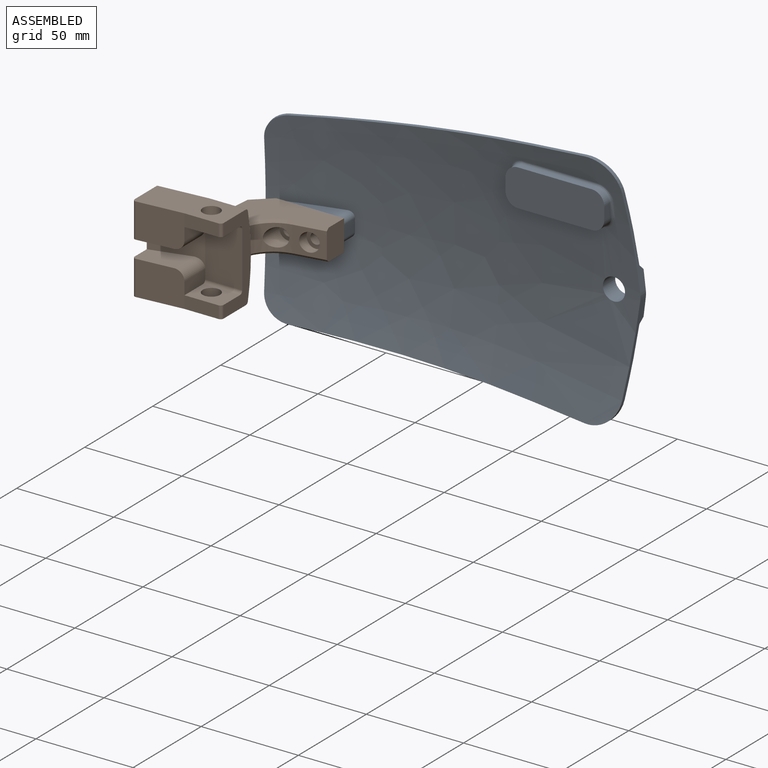
[diagram: assembled view]
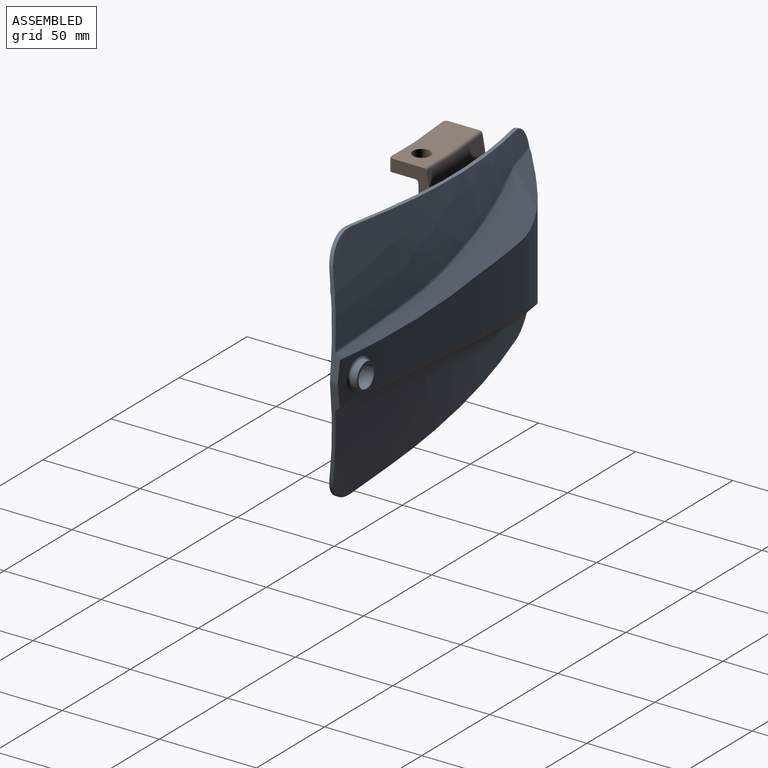
[diagram: assembled view, second angle]
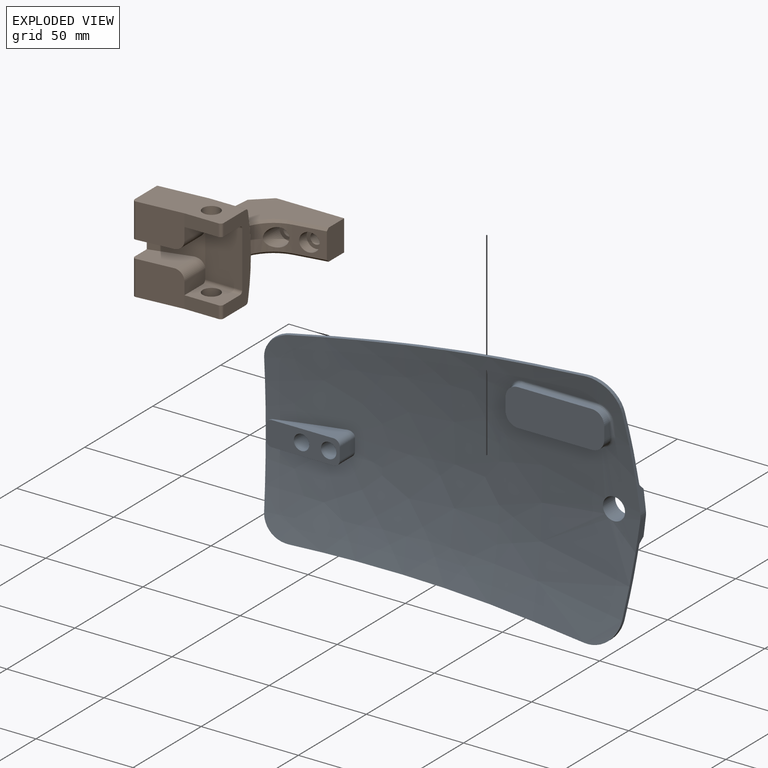
[diagram: exploded view]
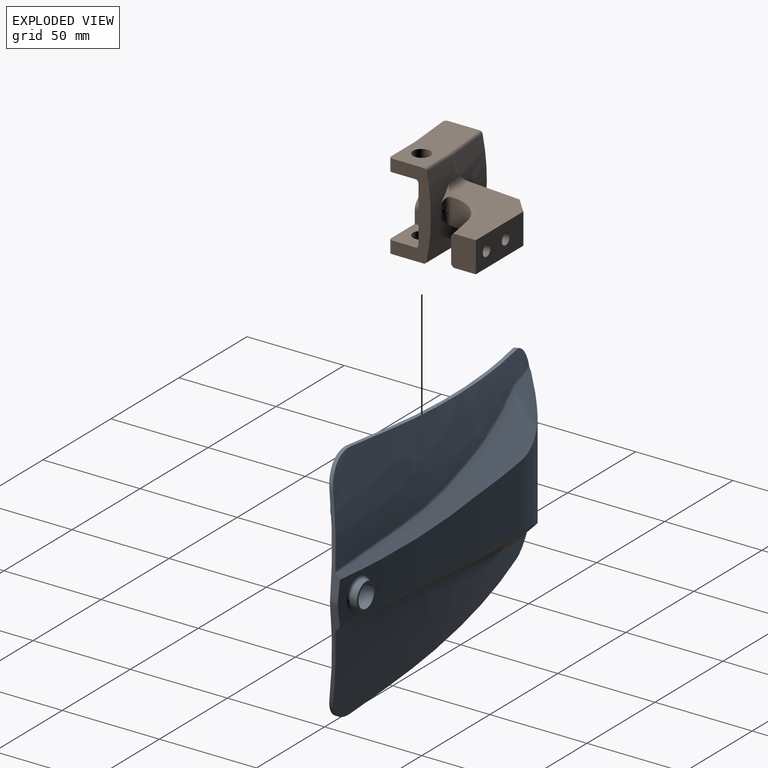
[diagram: exploded view, second angle]
ASSEMBLY  parts=2 mates=2
PART A: 82 faces, bbox 190.9x39x128.9 mm
  f0: bspline ~127.21x119.02mm, area 13110.2mm2, adj f1,f9,f18,f22,f23,f24,f61,f63
  f1: bspline ~127x50.8mm, area 4764.7mm2, adj f0,f17,f18,f19,f20,f21,f22,f25
  f2: cylinder r=762mm len=132.97mm, axis (0,0,-1), area 3119mm2, adj f5,f11,f12,f14,f15,f17,f20,f25
  f3: bspline ~128.8x127mm, area 82.9mm2, adj f9,f38,f40,f42
  f4: bspline ~128.8x127mm, area 3414.9mm2, adj f6,f22,f23,f41,f43,f44,f45,f46
  f5: plane 99.81x12.65mm, normal (0.04,0.71,0.71), area 767.7mm2, adj f2,f20,f28,f39,f41
  f6: bspline ~127x50.8mm, area 2000.1mm2, adj f4,f20,f21,f22,f39
  f7: bspline ~127x50.8mm, area 2000.1mm2, adj f8,f17,f18,f19,f32
  f8: bspline ~128.8x127mm, area 3414.9mm2, adj f7,f18,f24,f33,f34,f35,f36,f37
  f9: plane 72.03x4.27mm, normal (-0.94,-0.33,0), area 137.5mm2, adj f0,f3,f23,f24,f38,f42
  f10: cylinder r=127mm len=68.63mm, axis (0,0,-1), area 1243.7mm2, adj f11,f13,f16,f30,f31,f40
  f11: cylinder r=50.8mm len=49mm, axis (0,0,-1), area 1158.4mm2, adj f2,f10,f12,f13,f15,f16,f26,f29
  f12: plane 55.38x23.3mm, normal (0,0.71,-0.71), area 888.1mm2, adj f2,f11,f26,f27,f35
  f13: plane 22.64x20.28mm, normal (-0.25,0.71,-0.66), area 209.9mm2, adj f10,f11,f26,f30,f37,f38
  f14: plane 99.81x12.65mm, normal (0.04,0.71,-0.71), area 767.7mm2, adj f2,f17,f27,f32,f33
  f15: plane 55.38x23.3mm, normal (0,0.71,0.71), area 888.1mm2, adj f2,f11,f28,f29,f45
  f16: plane 22.64x20.28mm, normal (-0.25,0.71,0.66), area 209.9mm2, adj f10,f11,f29,f31,f42,f44
  f17: plane 46.83x8.94mm, normal (0.99,0,-0.13), area 115.1mm2, adj f1,f2,f7,f14,f19,f25,f32
  f18: plane 142.95x17.65mm, normal (-0.09,0,-1), area 282.5mm2, adj f0,f1,f7,f8,f19,f24
  f19: cylinder r=15.88mm len=17.23mm, axis (0,1,0), area 47.5mm2, adj f1,f7,f17,f18
  f20: plane 46.83x8.94mm, normal (0.99,0,0.13), area 115.1mm2, adj f1,f2,f5,f6,f21,f25,f39
  f21: cylinder r=15.88mm len=17.23mm, axis (0,1,0), area 47.5mm2, adj f1,f6,f20,f22
  f22: plane 142.95x17.65mm, normal (-0.09,0,1), area 282.5mm2, adj f0,f1,f4,f6,f21,f23
  f23: cylinder r=12.7mm len=12.79mm, axis (0.33,-0.94,0.03), area 36.7mm2, adj f0,f4,f9,f22,f42,f44
  f24: cylinder r=12.7mm len=12.79mm, axis (-0.33,0.94,0.03), area 36.7mm2, adj f0,f8,f9,f18,f37,f38
  f25: cylinder r=12.7mm len=4.03mm, axis (0,-1,0), area 13.4mm2, adj f1,f2,f17,f20
  f26: cylinder r=12.7mm len=15.76mm, axis (0.13,0.7,0.7), area 62.5mm2, adj f11,f12,f13,f36
  f27: cylinder r=12.7mm len=8.97mm, axis (-0.02,0.71,0.71), area 7.1mm2, adj f2,f12,f14,f34
  f28: cylinder r=12.7mm len=8.97mm, axis (-0.02,0.71,-0.71), area 7.1mm2, adj f2,f5,f15,f43
  f29: cylinder r=12.7mm len=15.76mm, axis (0.13,0.7,-0.7), area 62.5mm2, adj f11,f15,f16,f46
  f30: cylinder r=5.08mm len=10.09mm, axis (0,0,-1), area 7.3mm2, adj f10,f13,f38
  f31: cylinder r=5.08mm len=10.09mm, axis (0,0,-1), area 7.3mm2, adj f10,f16,f42
  f32: bspline ~67.99x5.13mm, area 45.1mm2, adj f7,f14,f17,f33
  f33: bspline ~92.98x14.14mm, area 46mm2, adj f8,f14,f32,f34
  f34: bspline ~3.11x1.31mm, area 0.5mm2, adj f8,f27,f33,f35
  f35: bspline ~84.87x19.03mm, area 49.5mm2, adj f8,f12,f34,f36
  f36: bspline ~6.85x2.47mm, area 3mm2, adj f8,f26,f35,f37
  f37: bspline ~32.6x10.06mm, area 15mm2, adj f8,f13,f24,f36,f38
  f38: bspline ~14.83x2.7mm, area 8.7mm2, adj f3,f9,f13,f24,f30,f37,f40
  f39: bspline ~67.99x5.13mm, area 45.1mm2, adj f5,f6,f20,f41
  f40: bspline ~56.08x3.06mm, area 31mm2, adj f3,f10,f38,f42
  f41: bspline ~92.98x14.14mm, area 46mm2, adj f4,f5,f39,f43
  f42: bspline ~14.83x2.7mm, area 8.7mm2, adj f3,f9,f16,f23,f31,f40,f44
  f43: bspline ~3.11x1.31mm, area 0.5mm2, adj f4,f28,f41,f45
  f44: bspline ~32.6x10.06mm, area 15mm2, adj f4,f16,f23,f42,f46
  f45: bspline ~84.87x19.03mm, area 49.5mm2, adj f4,f15,f43,f46
  f46: bspline ~4.99x1.84mm, area 3mm2, adj f4,f29,f44,f45
  f47: plane 13.97x13.97mm, normal (0,1,0), area 50.7mm2, adj f48,f50
  f48: cylinder r=6.99mm len=13.97mm, axis (0,1,0), area 113.9mm2, adj f47,f49
  f49: bspline ~16.52x16.51mm, area 93.1mm2, adj f2,f48
  f50: cylinder r=5.71mm len=11.43mm, axis (0,1,0), area 327mm2, adj f1,f47
  f51: cylinder r=6.35mm len=6.35mm, axis (0,-1,0), area 54mm2, adj f52,f57,f58,f62
  f52: plane 38.1x6mm, normal (0,0,-1), area 227.2mm2, adj f51,f53,f57,f60,f61
  f53: cylinder r=6.35mm len=6.35mm, axis (0,-1,0), area 53.7mm2, adj f52,f54,f57,f63
  f54: plane 6.35x4.81mm, normal (-1,0,0), area 27.5mm2, adj f53,f55,f57,f65
  f55: cylinder r=6.35mm len=6.35mm, axis (0,-1,0), area 31.9mm2, adj f54,f56,f57,f67
  f56: plane 38.1x2.62mm, normal (0,0,1), area 98.3mm2, adj f55,f57,f59,f68,f69
  f57: plane 50.8x19.05mm, normal (0,-1,0), area 933.1mm2, adj f51,f52,f53,f54,f55,f56,f58,f59
  f58: plane 6.35x4.92mm, normal (1,0,0), area 28.2mm2, adj f51,f57,f59,f64
  f59: cylinder r=6.35mm len=6.35mm, axis (0,-1,0), area 32.2mm2, adj f56,f57,f58,f66
  f60: cylinder r=1.27mm len=31.74mm, axis (-1,0,0), area 58.8mm2, adj f1,f52,f61,f62
  f61: bspline ~31.87x1.68mm, area 11.8mm2, adj f0,f52,f60,f63
  f62: bspline ~9.38x9.31mm, area 20.6mm2, adj f1,f51,f60,f64
  f63: bspline ~9.38x9.34mm, area 20.8mm2, adj f0,f53,f61,f65
  f64: bspline ~32.03x6.24mm, area 12.9mm2, adj f1,f58,f62,f66
  f65: bspline ~22.45x5.22mm, area 13.1mm2, adj f0,f54,f63,f67
  f66: bspline ~9.38x9.3mm, area 23.2mm2, adj f1,f59,f64,f68
  f67: bspline ~9.33x8.24mm, area 23.4mm2, adj f0,f55,f65,f69
  f68: cylinder r=1.27mm len=31.74mm, axis (-1,0,0), area 71.3mm2, adj f1,f56,f66,f69
  f69: bspline ~31.88x1.97mm, area 14.3mm2, adj f0,f56,f67,f68
  f70: plane 31.79x10.35mm, normal (0,0,-1), area 187.6mm2, adj f0,f73,f74,f77
  f71: plane 31.79x10.35mm, normal (0,0,1), area 187.6mm2, adj f0,f75,f76,f77
  f72: plane 11.17x6.36mm, normal (1,0,0), area 70.8mm2, adj f0,f73,f76,f77
  f73: cylinder r=3.17mm len=11.14mm, axis (0,-1,0), area 53.5mm2, adj f0,f70,f72,f77
  f74: cylinder r=3.17mm len=3.08mm, axis (0,-1,0), area 2.1mm2, adj f0,f70,f77
  f75: cylinder r=3.17mm len=3.08mm, axis (0,-1,0), area 2.1mm2, adj f0,f71,f77
  f76: cylinder r=3.17mm len=11.14mm, axis (0,-1,0), area 53.5mm2, adj f0,f71,f72,f77
  f77: plane 38.14x12.74mm, normal (0,-1,0), area 375.7mm2, adj f0,f70,f71,f72,f73,f74,f75,f76
  f78: cylinder r=3.98mm len=12.7mm, axis (0,-1,0), area 317.2mm2, adj f77,f79
  f79: plane 7.95x7.95mm, normal (0,-1,0), area 49.6mm2, adj f78
  f80: cylinder r=3.98mm len=12.7mm, axis (0,-1,0), area 317.2mm2, adj f77,f81
  f81: plane 7.95x7.95mm, normal (0,-1,0), area 49.6mm2, adj f80
PART B: 61 faces, bbox 65.1x69x47.8 mm
  f0: cylinder r=19.05mm len=17.1mm, axis (0,0,-1), area 248.5mm2, adj f30,f31,f35,f38,f60
  f1: plane 15.24x6.35mm, normal (0,1,0), area 96.2mm2, adj f4,f5,f6,f18,f25
  f2: plane 23.76x17.97mm, normal (1,0.09,0), area 415.2mm2, adj f12,f13,f16,f23,f26,f43
  f3: cylinder r=1.59mm len=19.05mm, axis (0,1,0), area 47.5mm2, adj f4,f14,f15,f16
  f4: plane 28.58x19.05mm, normal (1,0,0), area 544.4mm2, adj f1,f3,f5,f15,f16,f22
  f5: cylinder r=1.59mm len=19.05mm, axis (0,1,0), area 47.5mm2, adj f1,f4,f6,f15
  f6: plane 19.05x13.65mm, normal (0,0,-1), area 197.5mm2, adj f1,f5,f7,f15,f45,f47
  f7: plane 17.46x6.35mm, normal (1,0,0), area 110.9mm2, adj f6,f8,f18,f45
  f8: plane 44.35x19.92mm, normal (0,0,1), area 728.4mm2, adj f7,f9,f15,f17,f18,f19,f42,f45
  f9: cylinder r=1.59mm len=19.05mm, axis (0,1,0), area 41.2mm2, adj f8,f10,f15,f19
  f10: cylinder r=101.6mm len=41.93mm, axis (0,1,0), area 603.6mm2, adj f9,f11,f15,f20,f34,f37,f49,f50
  f11: cylinder r=1.59mm len=19.05mm, axis (0,1,0), area 41.2mm2, adj f10,f12,f15,f21
  f12: plane 44.35x19.92mm, normal (0,0,-1), area 728.4mm2, adj f2,f11,f13,f15,f17,f21,f43,f44
  f13: plane 17.46x6.35mm, normal (1,0,0), area 110.9mm2, adj f2,f12,f14,f44
  f14: plane 19.05x13.65mm, normal (0,0,1), area 197.5mm2, adj f3,f13,f15,f16,f44,f46
  f15: plane 44.45x20mm, normal (0,1,0), area 419.8mm2, adj f3,f4,f5,f6,f8,f9,f10,f11
  f16: plane 15.24x6.35mm, normal (0,1,0), area 96.2mm2, adj f2,f3,f4,f14,f26
  f17: plane 44.51x19.92mm, normal (0,-1,0), area 766.3mm2, adj f8,f12,f19,f20,f21,f22,f23,f24
  f18: plane 23.76x17.97mm, normal (1,0.09,0), area 415.2mm2, adj f1,f7,f8,f24,f25,f42
  f19: bspline ~25.3x3.77mm, area 54.8mm2, adj f8,f9,f17,f20
  f20: bspline ~41.93x25.3mm, area 898.9mm2, adj f10,f17,f19,f21,f40,f41,f50,f52
  f21: bspline ~25.3x3.77mm, area 54.8mm2, adj f11,f12,f17,f20
  f22: plane 25.88x19.62mm, normal (0.97,0.26,0), area 244.3mm2, adj f4,f17,f23,f24,f25,f26
  f23: plane 20.22x15.95mm, normal (0,0,1), area 252.1mm2, adj f2,f17,f22,f26,f43
  f24: plane 20.22x15.95mm, normal (0,0,-1), area 252.1mm2, adj f17,f18,f22,f25,f42
  f25: cylinder r=5.08mm len=15.68mm, axis (1,0,0), area 118mm2, adj f1,f18,f22,f24
  f26: cylinder r=5.08mm len=15.68mm, axis (-1,0,0), area 118mm2, adj f2,f16,f22,f23
  f27: plane 46.33x36.03mm, normal (0,0,1), area 920mm2, adj f32,f33,f37,f38,f39,f41,f48,f51
  f28: plane 46.33x36.03mm, normal (0,0,-1), area 920mm2, adj f32,f33,f34,f35,f36,f40,f48,f49
  f29: plane 26.83x13.35mm, normal (-0.09,-1,0), area 357.2mm2, adj f40,f41,f48,f54
  f30: plane 13.34x2.29mm, normal (0.09,1,0), area 28.8mm2, adj f0,f34,f37,f53
  f31: plane 19.05x16.69mm, normal (0.98,0.17,0), area 140.2mm2, adj f0,f32,f36,f39,f58
  f32: plane 15.88x12.7mm, normal (0,1,0), area 200mm2, adj f27,f28,f31,f33,f36,f39
  f33: plane 34.93x15.88mm, normal (-1,0,0), area 505.9mm2, adj f27,f28,f32,f48,f55,f56
  f34: plane 8.77x8.7mm, normal (0.06,0.7,-0.71), area 16.7mm2, adj f10,f28,f30,f35,f49,f53
  f35: cone r=20.32mm half-angle=45deg, axis (0,0,-1), area 46.3mm2, adj f0,f28,f34,f36
  f36: plane 15.91x4.06mm, normal (0.7,0.12,-0.71), area 28.8mm2, adj f28,f31,f32,f35
  f37: plane 8.77x8.7mm, normal (0.06,0.7,0.71), area 16.7mm2, adj f10,f27,f30,f38,f51,f53
  f38: cone r=19.05mm half-angle=45deg, axis (0,0,1), area 46.3mm2, adj f0,f27,f37,f39
  f39: plane 15.91x4.06mm, normal (0.7,0.12,0.71), area 28.8mm2, adj f27,f31,f32,f38
  f40: plane 31.95x7.87mm, normal (-0.06,-0.7,-0.71), area 58.8mm2, adj f20,f28,f29,f48,f50,f54
  f41: plane 31.95x7.87mm, normal (-0.06,-0.7,0.71), area 58.8mm2, adj f20,f27,f29,f48,f52,f54
  f42: cylinder r=1.59mm len=17.78mm, axis (0,0,1), area 46.8mm2, adj f8,f17,f18,f24
  f43: cylinder r=1.59mm len=17.78mm, axis (0,0,1), area 46.8mm2, adj f2,f12,f17,f23
  f44: cylinder r=1.59mm len=6.35mm, axis (0,0,1), area 15.8mm2, adj f12,f13,f14,f15
  f45: cylinder r=1.59mm len=6.35mm, axis (0,0,1), area 15.8mm2, adj f6,f7,f8,f15
  f46: cylinder r=4.45mm len=8.89mm, axis (0,0,1), area 177.3mm2, adj f12,f14
  f47: cylinder r=4.45mm len=8.89mm, axis (0,0,1), area 177.3mm2, adj f6,f8
  f48: plane 15.88x10.36mm, normal (-0.74,-0.68,0), area 220.6mm2, adj f27,f28,f29,f33,f40,f41
  f49: cylinder r=3.17mm len=7.61mm, axis (0,1,0), area 27.8mm2, adj f10,f28,f34,f50
  f50: cylinder r=3.17mm len=6.14mm, axis (0.09,-1,0), area 23.5mm2, adj f10,f20,f28,f40,f49
  f51: cylinder r=3.17mm len=7.61mm, axis (0,1,0), area 27.8mm2, adj f10,f27,f37,f52
  f52: cylinder r=3.17mm len=6.14mm, axis (0.09,-1,0), area 23.5mm2, adj f10,f20,f27,f41,f51
  f53: bspline ~13.35x3.66mm, area 56.9mm2, adj f10,f30,f34,f37
  f54: bspline ~26.26x3.7mm, area 47.3mm2, adj f20,f29,f40,f41
  f55: cylinder r=2.78mm len=9.53mm, axis (-1,0,0), area 166.3mm2, adj f33,f59
  f56: cylinder r=2.78mm len=9.53mm, axis (-1,0,0), area 166.3mm2, adj f33,f57
  f57: plane 9.53x9.53mm, normal (1,0,0), area 47mm2, adj f56,f58
  f58: cylinder r=4.76mm len=9.53mm, axis (1,0,0), area 162.1mm2, adj f31,f57
  f59: plane 9.53x9.53mm, normal (1,0,0), area 47mm2, adj f55,f60
  f60: cylinder r=4.76mm len=9.53mm, axis (1,0,0), area 245.7mm2, adj f0,f59
PLACE A t=(212.94,15.79,59.94)mm
PLACE B rot(axis=(0,0,-1),90deg) t=(44.37,-53.98,59.94)mm
MATE fastened B.f56 <-> A.f80  axis (0,1,0) through (67.27,-9.53,59.94)mm
MATE planar A.f77 <-> B.f33  axis (0,-1,0) through (52.27,-9.53,59.94)mm
